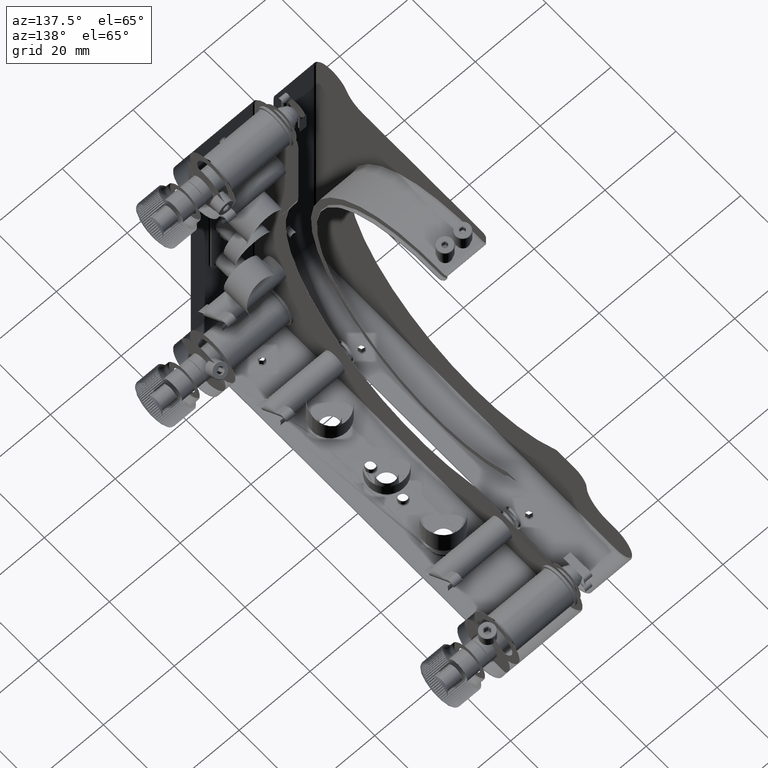
[diagram: clean part render]
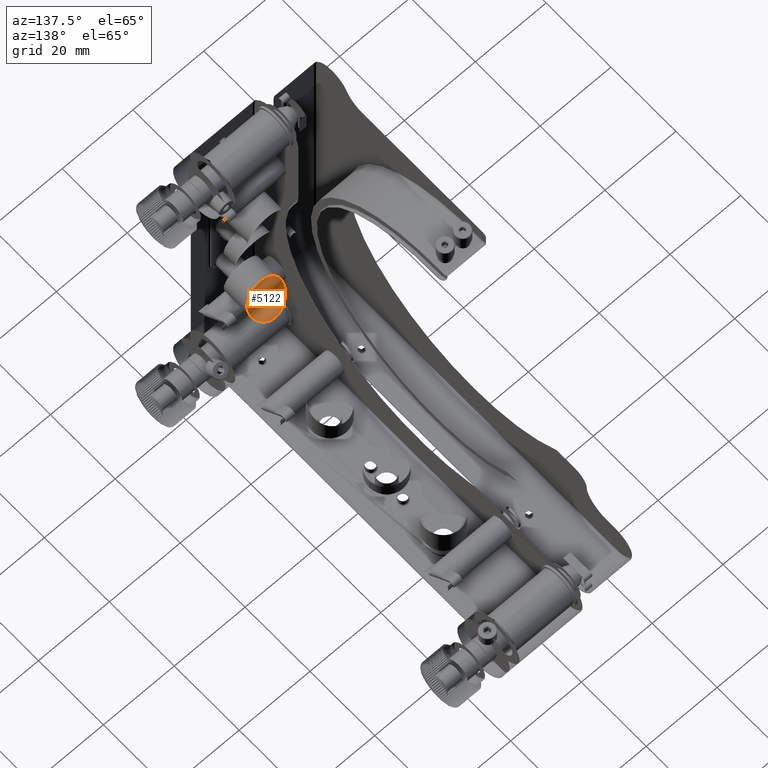
[diagram: same view with one face highlighted and labeled with its STEP entity id]
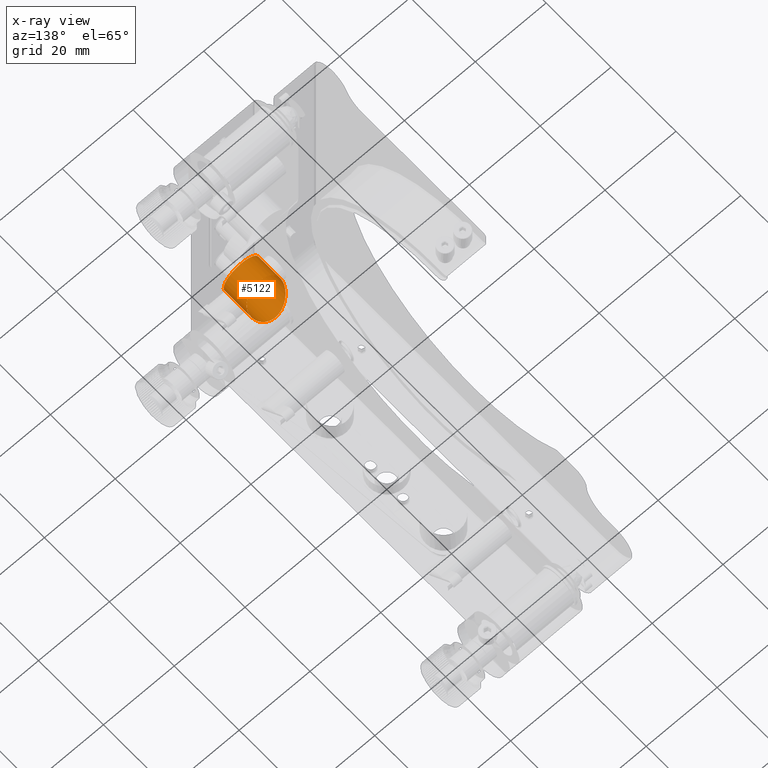
[diagram: x-ray of the same camera — body ghosted, the highlighted face saturated]
A machine part, auxiliary view. The second image highlights one B-rep face of the part: STEP entity #5122.
The next image is the same camera in x-ray: the body ghosted, the highlighted face saturated — about 0% of this face is hidden behind the body in this view.
In plain terms, the highlighted cylindrical surface (bore or boss wall) has radius 5 mm, axis along (0, 1, -0).
Its self-contained STEP definition (entity closure, byte-faithful):
#211 = CARTESIAN_POINT ( 'NONE',  ( 4.953576128944138901, -36.86363742813460931, -18.24567084713618215 ) ) ;
#1467 = CARTESIAN_POINT ( 'NONE',  ( 4.869863383341578533, -44.80000000000000426, -18.80873942179639613 ) ) ;
#1740 = CARTESIAN_POINT ( 'NONE',  ( 4.999999999999999112, -44.80000000000001137, -16.84550153050211918 ) ) ;
#3486 = CARTESIAN_POINT ( 'NONE',  ( 4.013030849851409343, -35.58914959434864045, -20.49855366014346458 ) ) ;
#3750 = CARTESIAN_POINT ( 'NONE',  ( 3.133541469507329147, -35.01446546085129086, -21.40976601463831130 ) ) ;
#4011 = CARTESIAN_POINT ( 'NONE',  ( 2.601759002775408725, -34.76956872400050003, -21.78207922881163228 ) ) ;
#4285 = CARTESIAN_POINT ( 'NONE',  ( -4.981998399112061549, -36.86392050081941107, -18.25565600956768719 ) ) ;
#4549 = CARTESIAN_POINT ( 'NONE',  ( -4.006960139522147912, -35.58404805073295307, -20.50697266472717217 ) ) ;
#5122 = ADVANCED_FACE ( 'NONE', ( #32844, #28525 ), #20141, .T. ) ;
#5793 = CARTESIAN_POINT ( 'NONE',  ( 3.072733599874575283, -44.80000000000002558, -13.50166578800909711 ) ) ;
#6073 = CARTESIAN_POINT ( 'NONE',  ( 3.998334211990899778, -44.79999999999999716, -20.57273359987456018 ) ) ;
#6554 = CARTESIAN_POINT ( 'NONE',  ( -4.368931941767502991, -44.80000000000003268, -14.98190509813916727 ) ) ;
#6819 = CARTESIAN_POINT ( 'NONE',  ( -0.6544984694969616656, -44.79999999999999716, -12.49999999999999467 ) ) ;
#7046 = ORIENTED_EDGE ( 'NONE', *, *, #19012, .T. ) ;
#7550 = CARTESIAN_POINT ( 'NONE',  ( 0.3563191027100831021, -39.28533437576182052, -12.50040648825177847 ) ) ;
#7817 = CARTESIAN_POINT ( 'NONE',  ( -4.883047541264193825, -37.77405565599264037, -16.37971631891577928 ) ) ;
#8076 = CARTESIAN_POINT ( 'NONE',  ( 3.376787758239802262, -35.14937118457808651, -21.20117416409669886 ) ) ;
#8339 = CARTESIAN_POINT ( 'NONE',  ( 3.046820953876329341, -38.93073816692506028, -13.53190351612680153 ) ) ;
#8613 = CARTESIAN_POINT ( 'NONE',  ( 1.374387281672931227, -39.22594907281906984, -12.68026343184379101 ) ) ;
#10143 = CARTESIAN_POINT ( 'NONE',  ( -8.760006976324841854E-12, -44.80000000000000426, -22.49999999999999289 ) ) ;
#10419 = CARTESIAN_POINT ( 'NONE',  ( 4.368931941771289296, -44.80000000000001137, -14.98190509814549465 ) ) ;
#11167 = CARTESIAN_POINT ( 'NONE',  ( -3.998334212000347776, -44.80000000000001137, -20.57273359986207950 ) ) ;
#11632 = CARTESIAN_POINT ( 'NONE',  ( -1.850662847013727630, -34.52226038576778677, -22.14789904056310732 ) ) ;
#11846 = CARTESIAN_POINT ( 'NONE',  ( -9.334304525032836150E-16, -39.28546766142413560, -12.49999999999999289 ) ) ;
#11894 = CARTESIAN_POINT ( 'NONE',  ( 4.990758462394928152, -37.02353078855090729, -17.93608818538184480 ) ) ;
#12156 = CARTESIAN_POINT ( 'NONE',  ( 4.498024711163864708, -36.06103915180455033, -19.70509587388290385 ) ) ;
#12417 = CARTESIAN_POINT ( 'NONE',  ( 4.352120278951594479, -35.89977810594359653, -19.98088486878314640 ) ) ;
#12678 = CARTESIAN_POINT ( 'NONE',  ( -5.006453282930634963, -37.33220734251917605, -17.31763624477219210 ) ) ;
#13632 = B_SPLINE_CURVE_WITH_KNOTS ( 'NONE', 3,
 ( #26079, #18498, #29596, #21487, #19296, #11167, #39879, #15503, #27682, #31484, #43655, #6554, #48503, #15228, #27152, #44191, #6819, #31743 ),
 .UNSPECIFIED., .F., .F.,
 ( 4, 2, 2, 2, 2, 2, 2, 2, 4 ),
 ( 0.000000000000000000, 0.1249999999999998057, 0.2499999999999996114, 0.3749999999999994449, 0.4999999999999993339, 0.6249999999999992228, 0.7499999999999994449, 0.8749999999999997780, 1.000000000000000000 ),
 .UNSPECIFIED. ) ;
#13658 = CARTESIAN_POINT ( 'NONE',  ( 1.308739421796400348, -44.79999999999999716, -12.63013661665841525 ) ) ;
#14752 = CARTESIAN_POINT ( 'NONE',  ( 3.072733599874573507, -44.80000000000000426, -21.49833421199089045 ) ) ;
#15228 = CARTESIAN_POINT ( 'NONE',  ( -3.072733599870841381, -44.80000000000000426, -13.50166578800637218 ) ) ;
#15503 = CARTESIAN_POINT ( 'NONE',  ( -4.869863383344812391, -44.80000000000001137, -18.80873942178390834 ) ) ;
#15710 = CARTESIAN_POINT ( 'NONE',  ( -3.134678048177033993, -35.01491395654374372, -21.40904536280068982 ) ) ;
#15821 = CARTESIAN_POINT ( 'NONE',  ( 0.000000000000000000, -36.80000000000000426, -17.49999999999999645 ) ) ;
#15954 = B_SPLINE_CURVE_WITH_KNOTS ( 'NONE', 3,
 ( #38572, #50731, #13658, #18004, #5793, #22339, #10419, #38847, #1740, #18278, #1467, #51282, #6073, #14752, #30718, #46680, #47218, #10143 ),
 .UNSPECIFIED., .F., .F.,
 ( 4, 2, 2, 2, 2, 2, 2, 2, 4 ),
 ( 0.000000000000000000, 0.1250000000000002498, 0.2500000000000004996, 0.3750000000000006661, 0.5000000000000005551, 0.6250000000000003331, 0.7500000000000001110, 0.8750000000000001110, 1.000000000000000000 ),
 .UNSPECIFIED. ) ;
#15963 = CARTESIAN_POINT ( 'NONE',  ( -0.6951733757503633093, -34.30470390879505516, -22.46335417935303269 ) ) ;
#16228 = CARTESIAN_POINT ( 'NONE',  ( -4.802798376008822423, -37.91188545220341410, -16.07271168889592872 ) ) ;
#16495 = CARTESIAN_POINT ( 'NONE',  ( -3.185687940117036376, -38.89525867784741564, -13.63130478242327293 ) ) ;
#16757 = CARTESIAN_POINT ( 'NONE',  ( -4.350119948900672995, -35.89749889558483886, -19.98476771475970537 ) ) ;
#18004 = CARTESIAN_POINT ( 'NONE',  ( 2.518094901854496914, -44.79999999999999716, -13.13106805822869738 ) ) ;
#18278 = CARTESIAN_POINT ( 'NONE',  ( 4.999999999999997335, -44.79999999999999716, -18.15449846949785595 ) ) ;
#18498 = CARTESIAN_POINT ( 'NONE',  ( -0.6544984695188602597, -44.80000000000000426, -22.49999999999712585 ) ) ;
#19012 = EDGE_CURVE ( 'NONE', #51659, #51659, #44708, .T. ) ;
#19241 = ORIENTED_EDGE ( 'NONE', *, *, #37054, .T. ) ;
#19296 = CARTESIAN_POINT ( 'NONE',  ( -3.072733599888352707, -44.80000000000001137, -21.49833421198015770 ) ) ;
#20031 = CARTESIAN_POINT ( 'NONE',  ( 3.434698607155060923, -38.80997558761997368, -13.86249810416958361 ) ) ;
#20141 = CYLINDRICAL_SURFACE ( 'NONE', #44715, 4.999999999999999112 ) ;
#20285 = CARTESIAN_POINT ( 'NONE',  ( 2.336829181013254431, -39.09511920793888606, -13.06637021044923586 ) ) ;
#20493 = EDGE_CURVE ( 'NONE', #29226, #44085, #13632, .T. ) ;
#20553 = CARTESIAN_POINT ( 'NONE',  ( 4.734457411318734543, -36.38326796264101404, -19.13694445100170327 ) ) ;
#20820 = CARTESIAN_POINT ( 'NONE',  ( -4.848011245144773440, -36.53624618131567559, -18.86758407564184026 ) ) ;
#21088 = CARTESIAN_POINT ( 'NONE',  ( -3.811706572381288627, -35.43331692781426057, -20.75102857768094466 ) ) ;
#21487 = CARTESIAN_POINT ( 'NONE',  ( -2.518094901870396196, -44.79999999999999005, -21.86893194176197852 ) ) ;
#22339 = CARTESIAN_POINT ( 'NONE',  ( 3.998334211990900666, -44.79999999999999716, -14.42726640012542205 ) ) ;
#24092 = CARTESIAN_POINT ( 'NONE',  ( -1.692859598075599825, -34.48124454189412802, -22.20781409255120309 ) ) ;
#24360 = CARTESIAN_POINT ( 'NONE',  ( -2.599078421723646226, -34.76841302676503176, -21.78388065565404474 ) ) ;
#24612 = CARTESIAN_POINT ( 'NONE',  ( 1.708961118340428964, -39.18987202214401577, -12.78859939847738403 ) ) ;
#24875 = CARTESIAN_POINT ( 'NONE',  ( -4.095881233954856704, -38.52346618202520290, -14.61370446804657064 ) ) ;
#25151 = CARTESIAN_POINT ( 'NONE',  ( 0.3509114356623545539, -34.27904943708107766, -22.50000000002839329 ) ) ;
#25947 = CARTESIAN_POINT ( 'NONE',  ( -4.047547345030488852E-10, -34.27900721146130536, -22.49999999999999645 ) ) ;
#26079 = CARTESIAN_POINT ( 'NONE',  ( -8.760006976324841854E-12, -44.80000000000000426, -22.49999999999999289 ) ) ;
#26545 = EDGE_LOOP ( 'NONE', ( #7046 ) ) ;
#27152 = CARTESIAN_POINT ( 'NONE',  ( -2.518094901851262613, -44.79999999999999716, -13.13106805822697432 ) ) ;
#27682 = CARTESIAN_POINT ( 'NONE',  ( -5.000000000001433520, -44.80000000000001847, -18.15449846948601120 ) ) ;
#28147 = CARTESIAN_POINT ( 'NONE',  ( 2.631932257760144722, -39.03666854207150294, -13.23519483307989475 ) ) ;
#28411 = CARTESIAN_POINT ( 'NONE',  ( 3.892948881548278006, -38.62818399020707716, -14.34480918727809673 ) ) ;
#28525 = FACE_OUTER_BOUND ( 'NONE', #29510, .T. ) ;
#28676 = CARTESIAN_POINT ( 'NONE',  ( 4.091740430115639704, -38.52591835285335264, -14.60753751064898864 ) ) ;
#28922 = CARTESIAN_POINT ( 'NONE',  ( 4.910693845756937570, -37.78619349962097829, -16.36278905538353712 ) ) ;
#29196 = CARTESIAN_POINT ( 'NONE',  ( -4.493919657248010679, -36.05635919691033564, -19.71315632603080203 ) ) ;
#29226 = VERTEX_POINT ( 'NONE', #45047 ) ;
#29510 = EDGE_LOOP ( 'NONE', ( #44046, #19241 ) ) ;
#29596 = CARTESIAN_POINT ( 'NONE',  ( -1.308739421815906523, -44.79999999999999716, -22.36986338333620594 ) ) ;
#30718 = CARTESIAN_POINT ( 'NONE',  ( 2.518094901854497358, -44.80000000000000426, -21.86893194177127953 ) ) ;
#31484 = CARTESIAN_POINT ( 'NONE',  ( -4.999999999998566480, -44.80000000000001137, -16.84550153049208632 ) ) ;
#31648 = CARTESIAN_POINT ( 'NONE',  ( -2.449293598294705921E-16, -44.80000000000000426, -12.49999999999999289 ) ) ;
#31743 = CARTESIAN_POINT ( 'NONE',  ( -2.449293598294705921E-16, -44.80000000000000426, -12.49999999999999289 ) ) ;
#32213 = CARTESIAN_POINT ( 'NONE',  ( 3.819004000057650394, -35.43838573665095026, -20.74292987971041313 ) ) ;
#32466 = CARTESIAN_POINT ( 'NONE',  ( -1.703722468665515244, -39.19048986891832698, -12.78674669453018176 ) ) ;
#32732 = CARTESIAN_POINT ( 'NONE',  ( -4.047547345030488852E-10, -34.27900721146130536, -22.49999999999999645 ) ) ;
#32844 = FACE_OUTER_BOUND ( 'NONE', #26545, .T. ) ;
#32997 = CARTESIAN_POINT ( 'NONE',  ( -3.437804862817912976, -38.81394851070542984, -13.85385191929300852 ) ) ;
#33255 = CARTESIAN_POINT ( 'NONE',  ( -2.330819781155877291, -39.09619508477524619, -13.06325500850788579 ) ) ;
#36553 = CARTESIAN_POINT ( 'NONE',  ( -1.199677985085646270, -34.37848183569184357, -22.35698573346824602 ) ) ;
#36800 = CARTESIAN_POINT ( 'NONE',  ( 1.697575764749158056, -34.47676483348146093, -22.21485778992654048 ) ) ;
#37054 = EDGE_CURVE ( 'NONE', #44085, #29226, #15954, .T. ) ;
#37070 = CARTESIAN_POINT ( 'NONE',  ( -0.3448183249475764711, -39.28559877884363516, -12.49960012514485186 ) ) ;
#37334 = CARTESIAN_POINT ( 'NONE',  ( -0.6911985143418836186, -39.27382586735298986, -12.53569533292842308 ) ) ;
#37597 = CARTESIAN_POINT ( 'NONE',  ( -3.375744343846563300, -35.14899432017681136, -21.20170824509721541 ) ) ;
#38405 = CARTESIAN_POINT ( 'NONE',  ( -0.3509114364718590173, -34.27896498584153306, -22.49999999997159961 ) ) ;
#38572 = CARTESIAN_POINT ( 'NONE',  ( -2.449293598294705921E-16, -44.80000000000000426, -12.49999999999999289 ) ) ;
#38847 = CARTESIAN_POINT ( 'NONE',  ( 4.869863383341578533, -44.80000000000001847, -16.19126057820358611 ) ) ;
#39879 = CARTESIAN_POINT ( 'NONE',  ( -4.368931941778531503, -44.80000000000000426, -20.01809490184168538 ) ) ;
#40598 = CARTESIAN_POINT ( 'NONE',  ( -1.367006518809255500, -34.40923523814456075, -22.31254405967919041 ) ) ;
#40857 = CARTESIAN_POINT ( 'NONE',  ( -2.633115179934974570, -39.03639307009896697, -13.23595089293003113 ) ) ;
#41111 = CARTESIAN_POINT ( 'NONE',  ( 0.7000321123423118852, -39.27331138730951210, -12.53726325218271143 ) ) ;
#41384 = CARTESIAN_POINT ( 'NONE',  ( 2.309842197355856275, -34.65872680769025038, -21.94705256092266765 ) ) ;
#41652 = CARTESIAN_POINT ( 'NONE',  ( 4.825411158381193388, -36.54397912472995813, -18.84512030320125930 ) ) ;
#43655 = CARTESIAN_POINT ( 'NONE',  ( -4.869863383339078311, -44.80000000000001137, -16.19126057819474696 ) ) ;
#44046 = ORIENTED_EDGE ( 'NONE', *, *, #20493, .T. ) ;
#44085 = VERTEX_POINT ( 'NONE', #31648 ) ;
#44191 = CARTESIAN_POINT ( 'NONE',  ( -1.308739421794579583, -44.80000000000001847, -12.63013661665804932 ) ) ;
#44652 = CARTESIAN_POINT ( 'NONE',  ( -4.579622389597873600, -38.17436806630967538, -15.46749343609886829 ) ) ;
#44708 = B_SPLINE_CURVE_WITH_KNOTS ( 'NONE', 3,
 ( #32732, #25151, #45695, #45171, #36800, #41384, #4011, #3750, #8076, #32213, #3486, #12417, #12156, #20553, #41652, #211, #11894, #48956, #28922, #45428, #49736, #28676, #28411, #49483, #20031, #44913, #8339, #28147, #20285, #24612, #8613, #41111, #7550, #37070, #37334, #53562, #32466, #33255, #40857, #16495, #32997, #53290, #24875, #53032, #44652, #16228, #7817, #49215, #12678, #4285, #20820, #29196, #16757, #4549, #21088, #37597, #15710, #24360, #48698, #11632, #24092, #40598, #36553, #15963, #38405, #25947 ),
 .UNSPECIFIED., .T., .F.,
 ( 4, 2, 2, 2, 2, 2, 2, 2, 2, 2, 2, 2, 2, 2, 2, 2, 2, 2, 2, 2, 2, 2, 2, 2, 2, 2, 2, 2, 2, 2, 2, 2, 4 ),
 ( -0.01672534112219589003, -0.01568036436310285553, -0.01463538760400981756, -0.01359041084491678132, -0.01254543408582374335, -0.01150045732673070538, -0.01045548056763766914, -0.009410503808544629437, -0.008365527049451591465, -0.006275573531265538074, -0.005230596772172503572, -0.004185620013079470805, -0.003663131633532957024, -0.003140643253986443242, -0.002095666494893417414, -0.001050689735800389851, -5.712976707365757800E-06, 0.001039263782385665275, 0.002084240541478689368, 0.003129217300571716931, 0.004174194059664744494, 0.005219170818757775526, 0.006264147577850806559, 0.007309124336943834122, 0.008354101096036861684, 0.01044405461422290640, 0.01148903137331592356, 0.01253400813240894071, 0.01357898489150196134, 0.01462396165059497849, 0.01514645003014148533, 0.01566893840968799217, 0.01671391516878101280 ),
 .UNSPECIFIED. ) ;
#44715 = AXIS2_PLACEMENT_3D ( 'NONE', #15821, #45028, #45280 ) ;
#44913 = CARTESIAN_POINT ( 'NONE',  ( 3.181183258154263616, -38.89209210321261168, -13.63882820348513292 ) ) ;
#45028 = DIRECTION ( 'NONE',  ( 0.000000000000000000, 1.000000000000000000, -4.440892098500625176E-16 ) ) ;
#45047 = CARTESIAN_POINT ( 'NONE',  ( -8.760006976324841854E-12, -44.80000000000000426, -22.49999999999999289 ) ) ;
#45171 = CARTESIAN_POINT ( 'NONE',  ( 1.374324611033996391, -34.40421029440197742, -22.31990271290140626 ) ) ;
#45280 = DIRECTION ( 'NONE',  ( 0.000000000000000000, 0.000000000000000000, 1.000000000000000000 ) ) ;
#45428 = CARTESIAN_POINT ( 'NONE',  ( 4.577904294349407266, -38.17577616422094877, -15.46411371471665674 ) ) ;
#45695 = CARTESIAN_POINT ( 'NONE',  ( 0.6958627696928586515, -34.30461570291365092, -22.46346706487345557 ) ) ;
#46680 = CARTESIAN_POINT ( 'NONE',  ( 1.308739421796402125, -44.80000000000001137, -22.36986338334157409 ) ) ;
#47218 = CARTESIAN_POINT ( 'NONE',  ( 0.6544984694978736028, -44.80000000000000426, -22.49999999999999289 ) ) ;
#48503 = CARTESIAN_POINT ( 'NONE',  ( -3.998334211986889208, -44.80000000000000426, -14.42726640012039496 ) ) ;
#48698 = CARTESIAN_POINT ( 'NONE',  ( -2.309915296300796506, -34.65875077693932838, -21.94701756037161644 ) ) ;
#48956 = CARTESIAN_POINT ( 'NONE',  ( 5.013915230697080894, -37.49164305044695311, -16.99797828635734831 ) ) ;
#49215 = CARTESIAN_POINT ( 'NONE',  ( -4.985025446448952735, -37.48468035130189691, -17.00129155350415999 ) ) ;
#49483 = CARTESIAN_POINT ( 'NONE',  ( 3.554346737108054821, -38.76644087419796847, -13.97946179012817680 ) ) ;
#49736 = CARTESIAN_POINT ( 'NONE',  ( 4.436086040803031594, -38.29869695175437982, -15.16980266107395181 ) ) ;
#50731 = CARTESIAN_POINT ( 'NONE',  ( 0.6544984694978737139, -44.80000000000000426, -12.49999999999999112 ) ) ;
#51282 = CARTESIAN_POINT ( 'NONE',  ( 4.368931941771289296, -44.80000000000000426, -20.01809490185448581 ) ) ;
#51659 = VERTEX_POINT ( 'NONE', #11846 ) ;
#53032 = CARTESIAN_POINT ( 'NONE',  ( -4.436935223476091927, -38.29785263982885368, -15.17179236254258967 ) ) ;
#53290 = CARTESIAN_POINT ( 'NONE',  ( -3.894738516262914452, -38.62753339730959823, -14.34660341993019905 ) ) ;
#53562 = CARTESIAN_POINT ( 'NONE',  ( -1.374909048881358453, -39.22601744669666601, -12.68007247761533307 ) ) ;